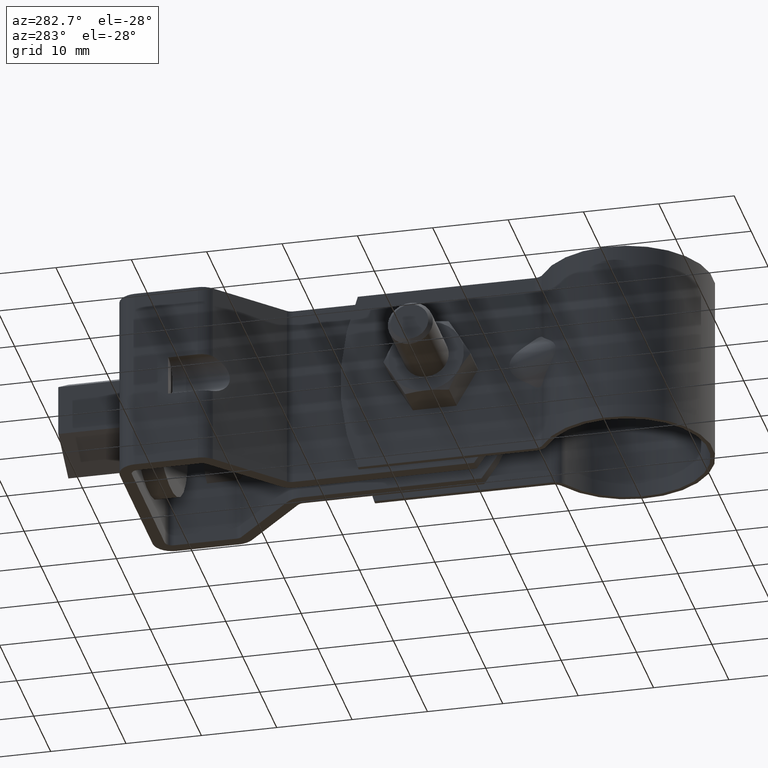
[diagram: clean part render]
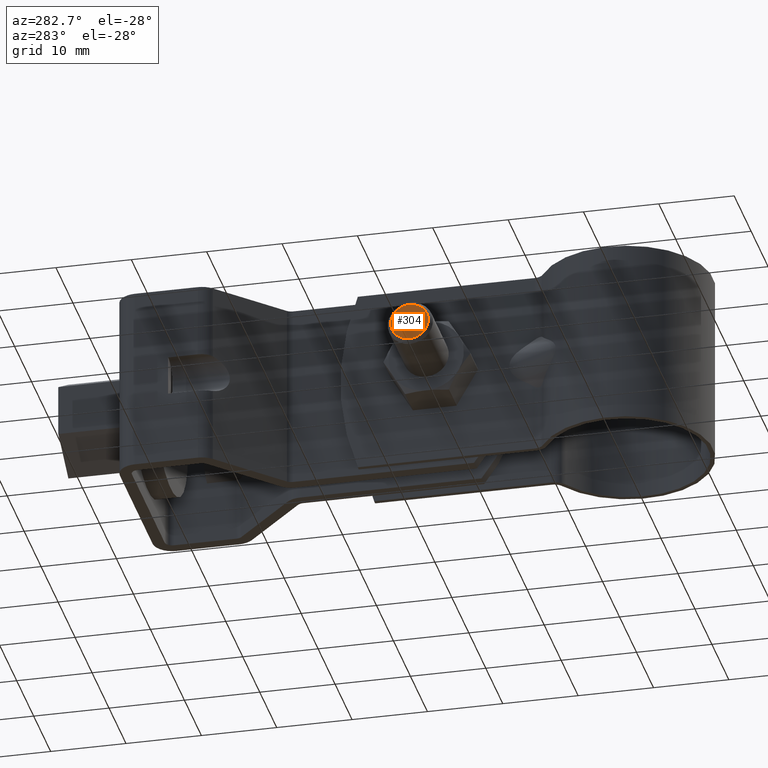
[diagram: same view with one face highlighted and labeled with its STEP entity id]
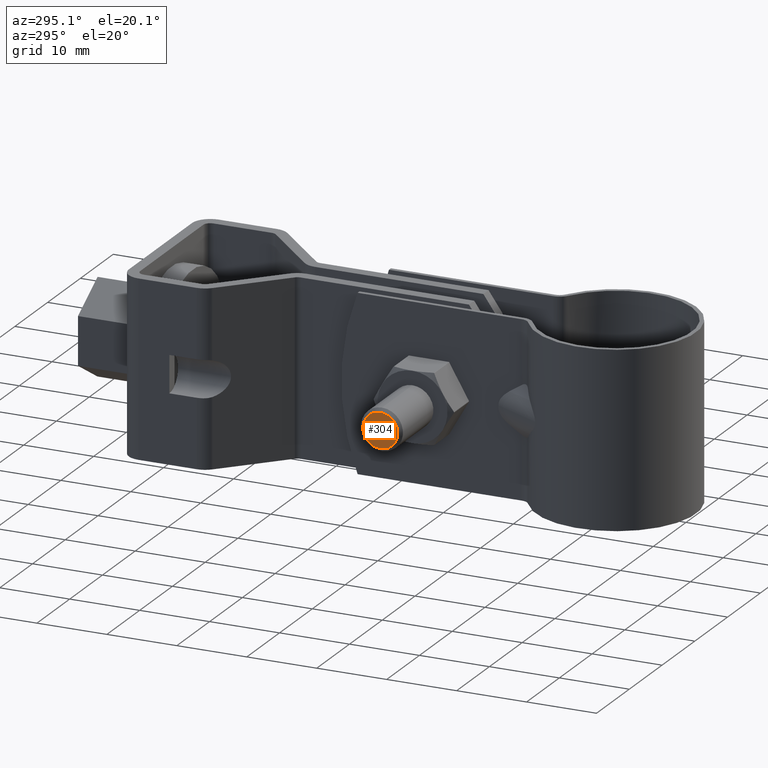
[diagram: same view with one face highlighted and labeled with its STEP entity id]
A machine part, auxiliary view. The second image highlights one B-rep face of the part: STEP entity #304.
A second angle (auxiliary view) of the same face is appended — the face is thin or edge-on in the first view.
In plain terms, the highlighted planar face has unit normal (1, -0, 0).
Its self-contained STEP definition (entity closure, byte-faithful):
#304 = ADVANCED_FACE( '', ( #473 ), #474, .F. );
#473 = FACE_OUTER_BOUND( '', #745, .T. );
#474 = PLANE( '', #746 );
#745 = EDGE_LOOP( '', ( #1240 ) );
#746 = AXIS2_PLACEMENT_3D( '', #1241, #1242, #1243 );
#1240 = ORIENTED_EDGE( '', *, *, #2035, .T. );
#1241 = CARTESIAN_POINT( '', ( -19.8999999999976, 24.3728162142319, -8.67361737988404E-016 ) );
#1242 = DIRECTION( '', ( 1.00000000000000, -6.06692130572647E-017, 0.000000000000000 ) );
#1243 = DIRECTION( '', ( 0.000000000000000, 0.000000000000000, -1.00000000000000 ) );
#2035 = EDGE_CURVE( '', #2423, #2423, #2424, .F. );
#2423 = VERTEX_POINT( '', #3102 );
#2424 = CIRCLE( '', #3103, 2.49999999999988 );
#3102 = CARTESIAN_POINT( '', ( -19.8999999999976, 24.3728162142319, -2.49999999999988 ) );
#3103 = AXIS2_PLACEMENT_3D( '', #3878, #3879, #3880 );
#3878 = CARTESIAN_POINT( '', ( -19.8999999999976, 24.3728162142319, -8.67361737988404E-016 ) );
#3879 = DIRECTION( '', ( 1.00000000000000, -6.06692130572647E-017, 0.000000000000000 ) );
#3880 = DIRECTION( '', ( 0.000000000000000, 0.000000000000000, -1.00000000000000 ) );